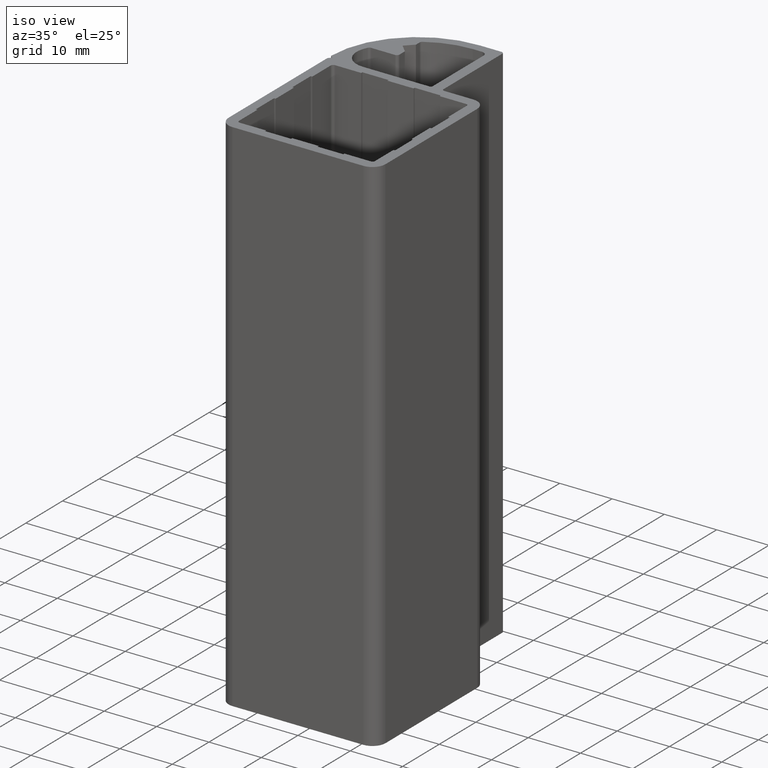
[diagram: clean part render]
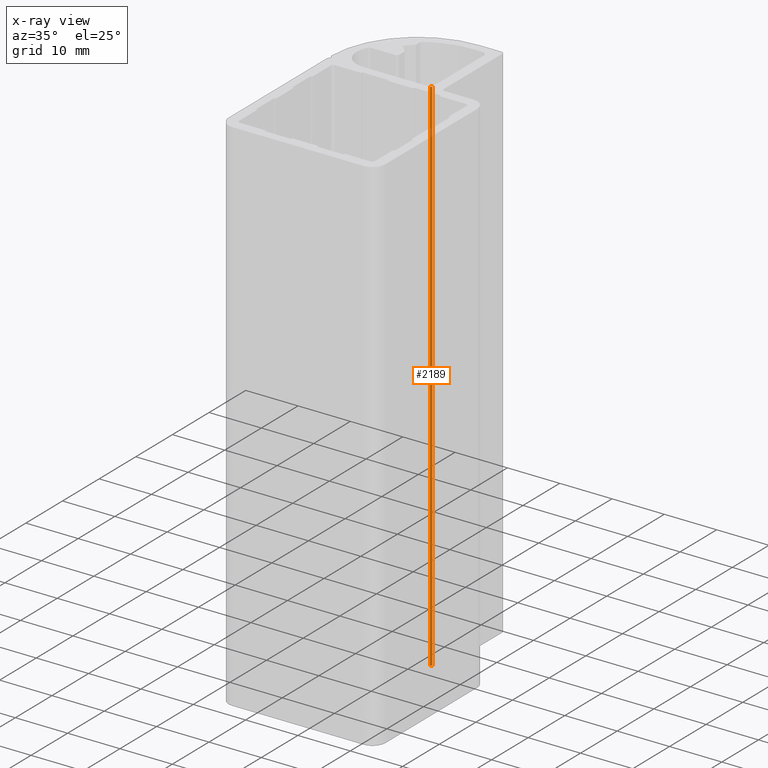
[diagram: x-ray — body ghosted, one internal face saturated and labeled with its STEP entity id]
A machine part, iso view, then the same camera in x-ray: the body is ghosted and one INTERNAL B-rep face — a face not visible from any outside direction — is saturated and labeled: STEP entity #2189.
In plain terms, the highlighted cylindrical surface (edge-blend (fillet) strip) has radius 0.25 mm, axis along (0, 0, 1).
Its self-contained STEP definition (entity closure, byte-faithful):
#890=CARTESIAN_POINT('',(4.499999999984595,30.249999999969646,100.0));
#891=VERTEX_POINT('',#890);
#898=CARTESIAN_POINT('',(4.249999999984595,29.999999999969646,100.0));
#899=VERTEX_POINT('',#898);
#900=CARTESIAN_POINT('',(4.249999999984595,30.249999999969646,100.0));
#901=DIRECTION('',(0.0,0.0,1.0));
#902=DIRECTION('',(1.0,0.0,0.0));
#903=AXIS2_PLACEMENT_3D('',#900,#901,#902);
#904=CIRCLE('',#903,0.250000000000000);
#905=EDGE_CURVE('',#899,#891,#904,.T.);
#1301=CARTESIAN_POINT('',(4.249999999984595,29.999999999969646,0.0));
#1302=VERTEX_POINT('',#1301);
#1309=CARTESIAN_POINT('',(4.499999999984595,30.249999999969646,0.0));
#1310=VERTEX_POINT('',#1309);
#1311=CARTESIAN_POINT('',(4.249999999984595,30.249999999969646,0.0));
#1312=DIRECTION('',(0.0,0.0,-1.0));
#1313=DIRECTION('',(1.0,0.0,0.0));
#1314=AXIS2_PLACEMENT_3D('',#1311,#1312,#1313);
#1315=CIRCLE('',#1314,0.250000000000000);
#1316=EDGE_CURVE('',#1310,#1302,#1315,.T.);
#2162=CARTESIAN_POINT('',(4.249999999984595,29.999999999969646,100.0));
#2163=DIRECTION('',(0.0,0.0,-1.0));
#2164=VECTOR('',#2163,100.0);
#2165=LINE('',#2162,#2164);
#2166=EDGE_CURVE('',#899,#1302,#2165,.T.);
#2173=CARTESIAN_POINT('',(4.249999999984595,30.249999999969646,100.0));
#2174=DIRECTION('',(0.0,0.0,1.0));
#2175=DIRECTION('',(5.053215E-016,-1.0,0.0));
#2176=AXIS2_PLACEMENT_3D('',#2173,#2174,#2175);
#2177=CYLINDRICAL_SURFACE('',#2176,0.250000000000000);
#2178=ORIENTED_EDGE('',*,*,#905,.T.);
#2179=CARTESIAN_POINT('',(4.499999999984595,30.249999999969646,100.0));
#2180=DIRECTION('',(0.0,0.0,-1.0));
#2181=VECTOR('',#2180,100.0);
#2182=LINE('',#2179,#2181);
#2183=EDGE_CURVE('',#891,#1310,#2182,.T.);
#2184=ORIENTED_EDGE('',*,*,#2183,.T.);
#2185=ORIENTED_EDGE('',*,*,#1316,.T.);
#2186=ORIENTED_EDGE('',*,*,#2166,.F.);
#2187=EDGE_LOOP('',(#2178,#2184,#2185,#2186));
#2188=FACE_OUTER_BOUND('',#2187,.T.);
#2189=ADVANCED_FACE('',(#2188),#2177,.F.);